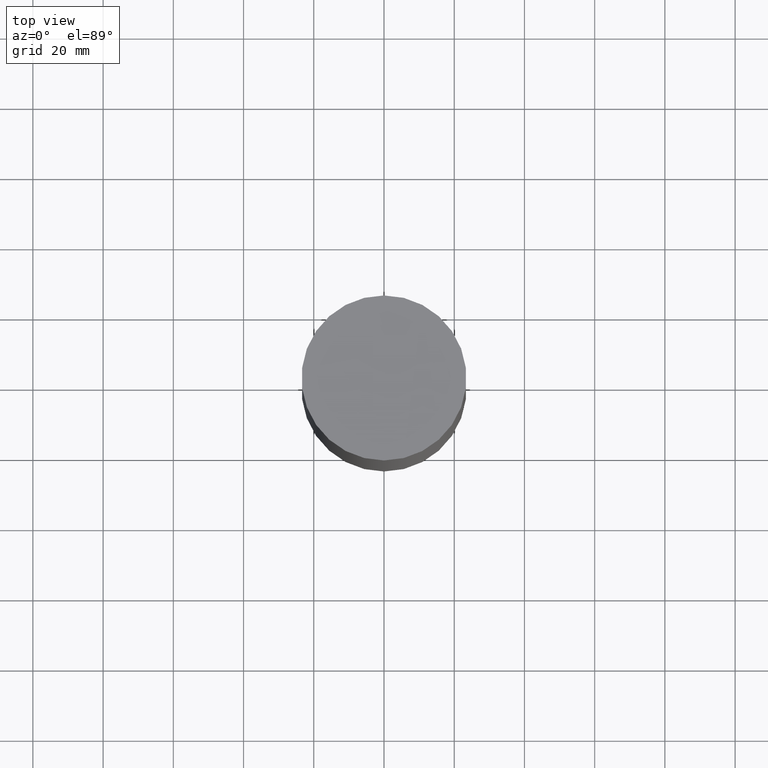
[diagram: clean part render]
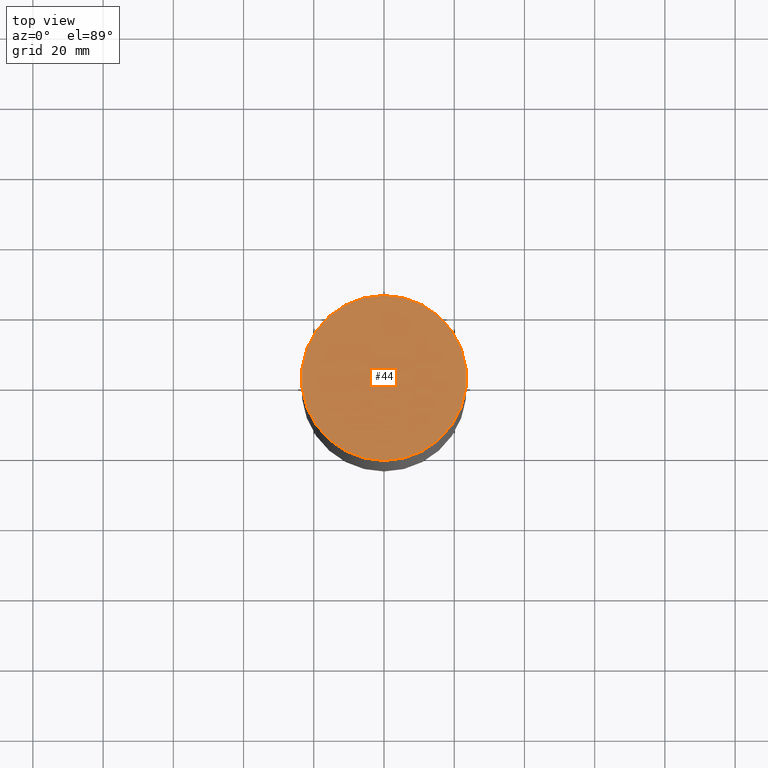
[diagram: same view with one face highlighted and labeled with its STEP entity id]
A machine part, top view. The second image highlights one B-rep face of the part: STEP entity #44.
In plain terms, the highlighted planar face has unit normal (-0, -0, 1).
Its self-contained STEP definition (entity closure, byte-faithful):
#44=ADVANCED_FACE('Unnamed[1]',(#91),#92,.T.);
#46=EDGE_CURVE('Unnamed[1]',#94,#94,#95,.T.);
#91=FACE_OUTER_BOUND('',#140,.T.);
#92=PLANE('',#141);
#94=VERTEX_POINT('',#144);
#95=CIRCLE('',#145,23.5);
#140=EDGE_LOOP('',(#183));
#141=AXIS2_PLACEMENT_3D('',#184,#185,#186);
#144=CARTESIAN_POINT('',(-2.8965986363584E-031,23.5,2.87791997799628E-015));
#145=AXIS2_PLACEMENT_3D('',#187,#188,#189);
#183=ORIENTED_EDGE('',*,*,#46,.T.);
#184=CARTESIAN_POINT('',(-1.4482993181792E-031,11.75,1.43895998899814E-015));
#185=DIRECTION('',(-6.12323399573677E-017,-1.22464679914735E-016,1.0));
#186=DIRECTION('',(-1.23259516440783E-032,1.0,1.22464679914735E-016));
#187=CARTESIAN_POINT('',(0.0,0.0,0.0));
#188=DIRECTION('',(-6.12323399573677E-017,-1.22464679914735E-016,1.0));
#189=DIRECTION('',(-1.23259516440783E-032,1.0,1.22464679914735E-016));